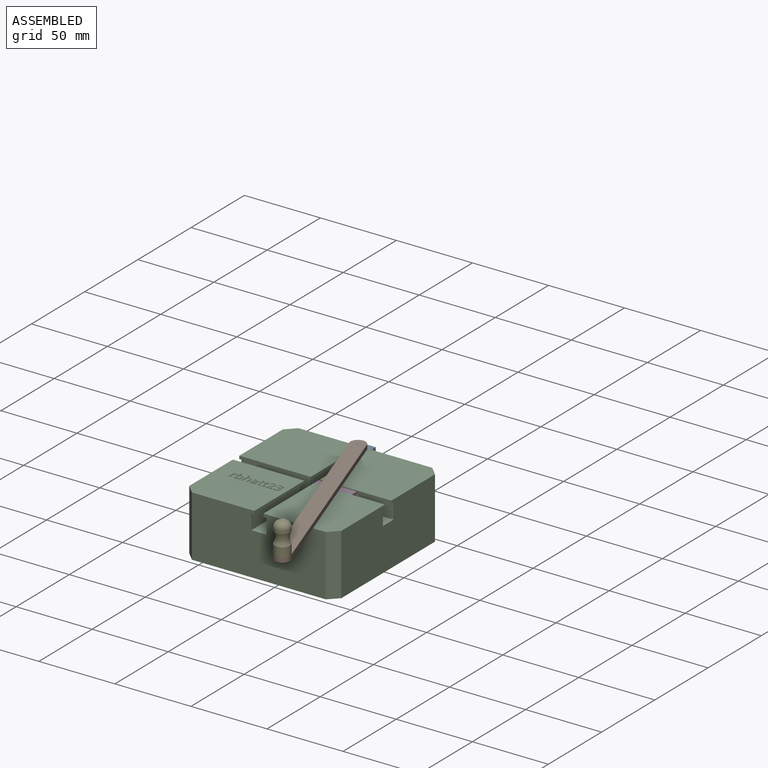
[diagram: assembled view]
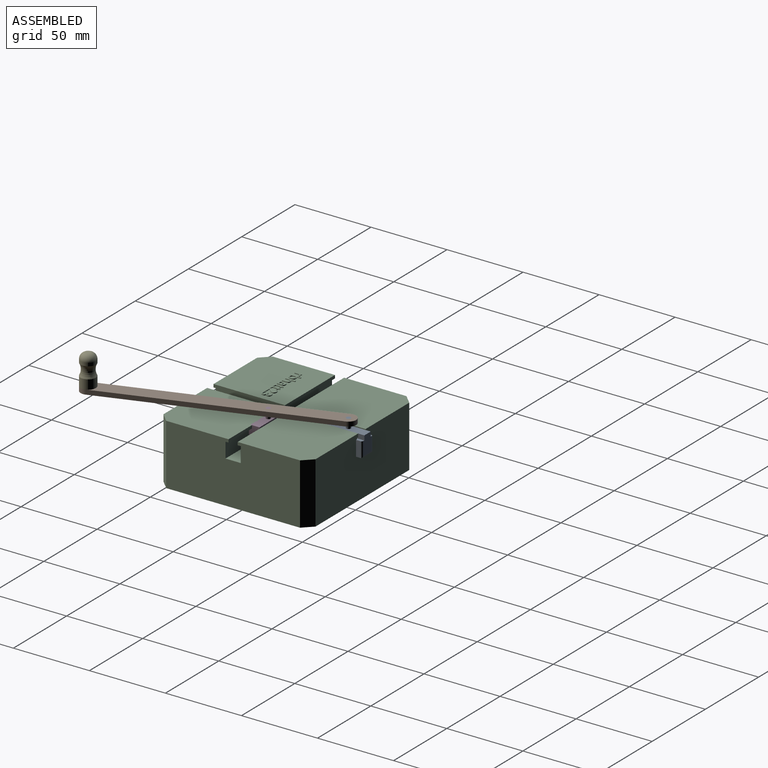
[diagram: assembled view, second angle]
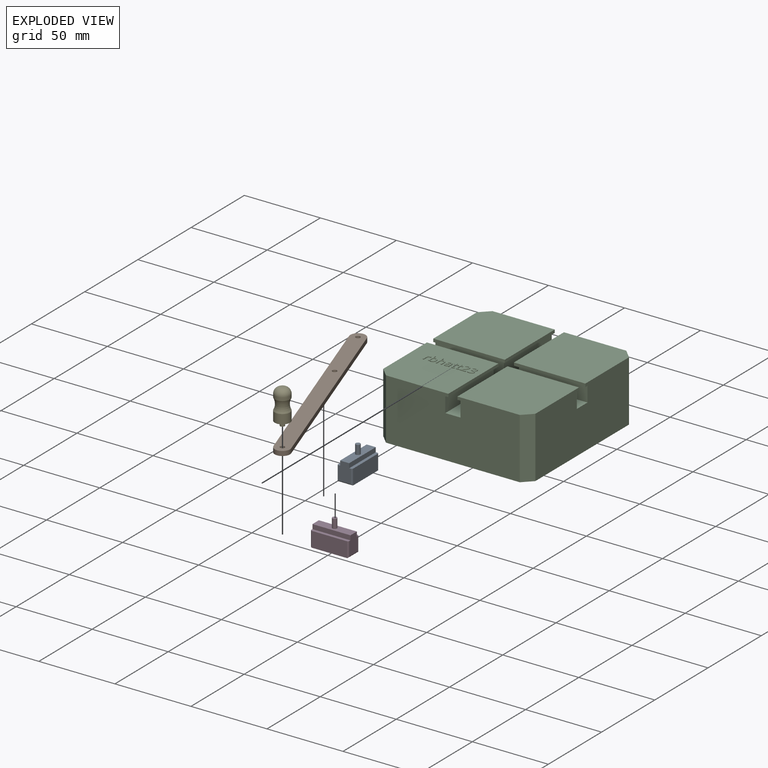
[diagram: exploded view]
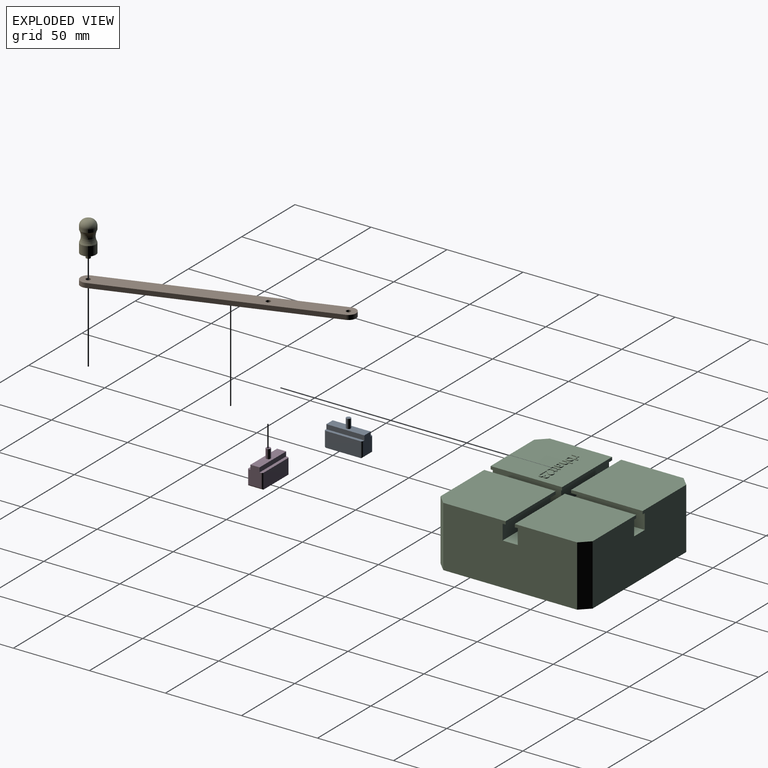
[diagram: exploded view, second angle]
ASSEMBLY  parts=5 mates=5
PART A: 18 faces, bbox 10x25x19 mm
  f0: plane 25x6mm, normal (0,0,1), area 142.9mm2, adj f1,f7,f8,f9,f16
  f1: plane 25x3mm, normal (-1,0,0), area 75mm2, adj f0,f2,f8,f9
  f2: plane 25x2mm, normal (0,0,1), area 49.6mm2, adj f1,f3,f8,f9,f10,f13
  f3: plane 23x10mm, normal (-1,0,0), area 230mm2, adj f2,f4,f10,f13
  f4: plane 23x10mm, normal (0,0,-1), area 230mm2, adj f3,f5,f11,f14
  f5: plane 23x10mm, normal (1,0,0), area 230mm2, adj f4,f6,f12,f15
  f6: plane 25x2mm, normal (0,0,1), area 49.6mm2, adj f5,f7,f8,f9,f12,f15
  f7: plane 25x3mm, normal (1,0,0), area 75mm2, adj f0,f6,f8,f9
  f8: plane 12x8mm, normal (0,-1,0), area 90mm2, adj f0,f1,f2,f6,f7,f13,f14,f15
  f9: plane 12x8mm, normal (0,1,0), area 90mm2, adj f0,f1,f2,f6,f7,f10,f11,f12
  f10: cylinder r=1mm len=10mm, axis (0,0,-1), area 15.1mm2, adj f2,f3,f9,f11
  f11: cylinder r=1mm len=10mm, axis (1,0,0), area 14.6mm2, adj f4,f9,f10,f12
  f12: cylinder r=1mm len=10mm, axis (0,0,1), area 15.1mm2, adj f5,f6,f9,f11
  f13: cylinder r=1mm len=10mm, axis (0,0,1), area 15.1mm2, adj f2,f3,f8,f14
  f14: cylinder r=1mm len=10mm, axis (-1,0,0), area 14.6mm2, adj f4,f8,f13,f15
  f15: cylinder r=1mm len=10mm, axis (0,0,-1), area 15.1mm2, adj f5,f6,f8,f14
  f16: cylinder r=1.5mm len=6mm, axis (0,0,-1), area 56.5mm2, adj f0,f17
  f17: plane 3x3mm, normal (0,0,1), area 7.1mm2, adj f16
PART B: 9 faces, bbox 10x156x3 mm
  f0: cylinder r=5mm len=10mm, axis (0,0,-1), area 47.1mm2, adj f1,f6,f7,f8
  f1: plane 146x3mm, normal (-1,0,0), area 438mm2, adj f0,f2,f7,f8
  f2: cylinder r=5mm len=10mm, axis (0,0,-1), area 47.1mm2, adj f1,f6,f7,f8
  f3: cylinder r=1.5mm len=3mm, axis (0,0,-1), area 28.3mm2, adj f7,f8
  f4: cylinder r=1.5mm len=3mm, axis (0,0,-1), area 28.3mm2, adj f7,f8
  f5: cylinder r=1.5mm len=3mm, axis (0,0,-1), area 28.3mm2, adj f7,f8
  f6: plane 146x3mm, normal (1,0,0), area 438mm2, adj f0,f2,f7,f8
  f7: plane 156x10mm, normal (0,0,1), area 1517.3mm2, adj f0,f1,f2,f3,f4,f5,f6
  f8: plane 156x10mm, normal (0,0,-1), area 1517.3mm2, adj f0,f1,f2,f3,f4,f5,f6
PART C: 211 faces, bbox 100x100x40.5 mm
  f0: plane 47x47mm, normal (0,0,1), area 2122.4mm2, adj f12,f13,f14,f19,f29,f34,f35,f36
  f1: plane 47x47mm, normal (0,0,1), area 2191mm2, adj f6,f10,f14,f15,f27
  f2: plane 47x47mm, normal (0,0,1), area 2191mm2, adj f5,f7,f10,f16,f30
  f3: plane 47x47mm, normal (0,0,-1), area 184mm2, adj f5,f7,f8,f10,f30,f33
  f4: plane 47x47mm, normal (0,0,-1), area 184mm2, adj f12,f14,f19,f24,f26,f29
  f5: plane 88x40mm, normal (0,1,0), area 3408mm2, adj f2,f3,f11,f16,f17,f18,f21,f23
  f6: plane 47x2mm, normal (0,1,0), area 94mm2, adj f1,f10,f25,f27
  f7: plane 47x2mm, normal (0,-1,0), area 94mm2, adj f2,f3,f10,f30
  f8: plane 45x10mm, normal (0,-1,0), area 450mm2, adj f3,f10,f23,f33
  f9: plane 45x10mm, normal (0,1,0), area 450mm2, adj f10,f23,f25,f28
  f10: plane 88x40mm, normal (1,0,0), area 3408mm2, adj f1,f2,f3,f6,f7,f8,f9,f15
  f11: plane 40x6mm, normal (-0.71,0.71,0), area 339.4mm2, adj f5,f12,f17,f18
  f12: plane 88x40mm, normal (-1,0,0), area 3408mm2, adj f0,f4,f11,f13,f17,f18,f19,f20
  f13: plane 40x6mm, normal (-0.71,-0.71,0), area 339.4mm2, adj f0,f12,f14,f18
  f14: plane 88x40mm, normal (0,-1,0), area 3408mm2, adj f0,f1,f4,f13,f15,f18,f23,f25
  f15: plane 40x6mm, normal (0.71,-0.71,0), area 339.4mm2, adj f1,f10,f14,f18
  f16: plane 40x6mm, normal (0.71,0.71,0), area 339.4mm2, adj f2,f5,f10,f18
  f17: plane 47x47mm, normal (0,0,1), area 2191mm2, adj f5,f11,f12,f20,f31
  f18: plane 100x100mm, normal (0,0,-1), area 9928mm2, adj f5,f10,f11,f12,f13,f14,f15,f16
  f19: plane 47x2mm, normal (0,1,0), area 94mm2, adj f0,f4,f12,f29
  f20: plane 47x2mm, normal (0,-1,0), area 94mm2, adj f12,f17,f21,f31
  f21: plane 47x47mm, normal (0,0,-1), area 184mm2, adj f5,f12,f20,f22,f31,f32
  f22: plane 45x10mm, normal (0,-1,0), area 450mm2, adj f12,f21,f23,f32
  f23: plane 100x100mm, normal (0,0,1), area 1900mm2, adj f5,f8,f9,f10,f12,f14,f22,f24
  f24: plane 45x10mm, normal (0,1,0), area 450mm2, adj f4,f12,f23,f26
  f25: plane 47x47mm, normal (0,0,-1), area 184mm2, adj f6,f9,f10,f14,f27,f28
  f26: plane 45x10mm, normal (1,0,0), area 450mm2, adj f4,f14,f23,f24
  f27: plane 47x2mm, normal (-1,0,0), area 94mm2, adj f1,f6,f14,f25
  f28: plane 45x10mm, normal (-1,0,0), area 450mm2, adj f9,f14,f23,f25
  f29: plane 47x2mm, normal (1,0,0), area 94mm2, adj f0,f4,f14,f19
  f30: plane 47x2mm, normal (-1,0,0), area 94mm2, adj f2,f3,f5,f7
  f31: plane 47x2mm, normal (1,0,0), area 94mm2, adj f5,f17,f20,f21
  f32: plane 45x10mm, normal (1,0,0), area 450mm2, adj f5,f21,f22,f23
  f33: plane 45x10mm, normal (-1,0,0), area 450mm2, adj f3,f5,f8,f23
  f34: extruded ~0.54x0.5mm, area 0.3mm2, adj f0,f35,f46,f47
  f35: extruded ~0.78x0.5mm, area 0.4mm2, adj f0,f34,f36,f47
  f36: extruded ~0.68x0.61mm, area 0.5mm2, adj f0,f35,f37,f47
  f37: plane 0.5x0.03mm, normal (0,1,0), area 0mm2, adj f0,f36,f38,f47
  f38: plane 0.84x0.5mm, normal (1,0.09,0), area 0.4mm2, adj f0,f37,f39,f47
  f39: plane 0.56x0.5mm, normal (0,1,0), area 0.3mm2, adj f0,f38,f40,f47
  f40: plane 4.52x0.5mm, normal (-1,0,0), area 2.3mm2, adj f0,f39,f41,f47
  f41: plane 0.68x0.5mm, normal (0,-1,0), area 0.3mm2, adj f0,f40,f42,f47
  f42: plane 2.42x0.5mm, normal (1,0,0), area 1.2mm2, adj f0,f41,f43,f47
  f43: extruded ~1.11x0.5mm, area 0.6mm2, adj f0,f42,f44,f47
  f44: extruded ~0.94x0.5mm, area 0.5mm2, adj f0,f43,f45,f47
  f45: extruded ~0.5x0.49mm, area 0.2mm2, adj f0,f44,f46,f47
  f46: plane 0.63x0.5mm, normal (0.99,-0.15,0), area 0.3mm2, adj f0,f34,f45,f47
  f47: plane 4.6x2.6mm, normal (0,0,1), area 4.3mm2, adj f34,f35,f36,f37,f38,f39,f40,f41
  f48: extruded ~1.01x0.5mm, area 0.6mm2, adj f49,f70,f71,f72
  f49: extruded ~0.96x0.5mm, area 0.5mm2, adj f48,f50,f71,f72
  f50: extruded ~1.31x0.5mm, area 0.7mm2, adj f49,f51,f71,f72
  f51: extruded ~1.32x0.5mm, area 0.7mm2, adj f50,f52,f71,f72
  f52: extruded ~0.94x0.5mm, area 0.5mm2, adj f51,f53,f71,f72
  f53: extruded ~1.02x0.5mm, area 0.6mm2, adj f52,f54,f71,f72
  f54: extruded ~1.36x0.5mm, area 0.7mm2, adj f53,f70,f71,f72
  f55: extruded ~1.38x0.61mm, area 0.8mm2, adj f0,f56,f69,f71
  f56: extruded ~1.42x0.68mm, area 0.8mm2, adj f0,f55,f57,f71
  f57: plane 0.5x0.03mm, normal (0,1,0), area 0mm2, adj f0,f56,f58,f71
  f58: extruded ~0.94x0.5mm, area 0.5mm2, adj f0,f57,f59,f71
  f59: plane 1.56x0.5mm, normal (1,0,0), area 0.8mm2, adj f0,f58,f60,f71
  f60: plane 0.68x0.5mm, normal (0,1,0), area 0.3mm2, adj f0,f59,f61,f71
  f61: plane 6.41x0.5mm, normal (-1,0,0), area 3.2mm2, adj f0,f60,f62,f71
  f62: plane 0.5x0.49mm, normal (0,-1,0), area 0.2mm2, adj f0,f61,f63,f71
  f63: plane 0.58x0.5mm, normal (0.97,-0.24,0), area 0.3mm2, adj f0,f62,f64,f71
  f64: plane 0.5x0.05mm, normal (0,-1,0), area 0mm2, adj f0,f63,f65,f71
  f65: extruded ~0.61x0.5mm, area 0.4mm2, adj f0,f64,f66,f71
  f66: extruded ~0.81x0.5mm, area 0.4mm2, adj f0,f65,f67,f71
  f67: extruded ~1.38x0.62mm, area 0.8mm2, adj f0,f66,f68,f71
  f68: extruded ~1.73x0.5mm, area 0.9mm2, adj f0,f67,f69,f71
  f69: extruded ~1.72x0.5mm, area 0.9mm2, adj f0,f55,f68,f71
  f70: extruded ~1.35x0.5mm, area 0.7mm2, adj f48,f54,f71,f72
  f71: plane 6.5x3.98mm, normal (0,0,1), area 9.9mm2, adj f48,f49,f50,f51,f52,f53,f54,f55
  f72: plane 3.53x2.58mm, normal (0,0,1), area 7.7mm2, adj f48,f49,f50,f51,f52,f53,f54,f70
  f73: plane 2.92x0.5mm, normal (-1,0,0), area 1.5mm2, adj f0,f74,f90,f91
  f74: plane 0.68x0.5mm, normal (0,-1,0), area 0.3mm2, adj f0,f73,f75,f91
  f75: plane 2.95x0.5mm, normal (1,0,0), area 1.5mm2, adj f0,f74,f76,f91
  f76: extruded ~1.25x0.5mm, area 0.7mm2, adj f0,f75,f77,f91
  f77: extruded ~1.24x0.5mm, area 0.7mm2, adj f0,f76,f78,f91
  f78: extruded ~0.85x0.5mm, area 0.4mm2, adj f0,f77,f79,f91
  f79: extruded ~0.58x0.51mm, area 0.4mm2, adj f0,f78,f80,f91
  f80: plane 0.5x0.04mm, normal (0,1,0), area 0mm2, adj f0,f79,f81,f91
  f81: extruded ~0.58x0.5mm, area 0.3mm2, adj f0,f80,f82,f91
  f82: plane 1.94x0.5mm, normal (1,0,0), area 1mm2, adj f0,f81,f83,f91
  f83: plane 0.68x0.5mm, normal (0,1,0), area 0.3mm2, adj f0,f82,f84,f91
  f84: plane 6.41x0.5mm, normal (-1,0,0), area 3.2mm2, adj f0,f83,f85,f91
  f85: plane 0.68x0.5mm, normal (0,-1,0), area 0.3mm2, adj f0,f84,f86,f91
  f86: plane 2.36x0.5mm, normal (1,0,0), area 1.2mm2, adj f0,f85,f87,f91
  f87: extruded ~1.27x0.5mm, area 0.7mm2, adj f0,f86,f88,f91
  f88: extruded ~1.04x0.5mm, area 0.6mm2, adj f0,f87,f89,f91
  f89: extruded ~0.79x0.5mm, area 0.4mm2, adj f0,f88,f90,f91
  f90: extruded ~0.82x0.5mm, area 0.4mm2, adj f0,f73,f89,f91
  f91: plane 6.41x3.78mm, normal (0,0,1), area 8.7mm2, adj f73,f74,f75,f76,f77,f78,f79,f80
  f92: extruded ~1x0.5mm, area 0.5mm2, adj f93,f118,f119,f120
  f93: extruded ~0.63x0.5mm, area 0.3mm2, adj f92,f94,f119,f120
  f94: extruded ~0.57x0.5mm, area 0.3mm2, adj f93,f95,f119,f120
  f95: extruded ~0.7x0.5mm, area 0.4mm2, adj f94,f96,f119,f120
  f96: extruded ~1.18x0.5mm, area 0.6mm2, adj f95,f97,f119,f120
  f97: plane 0.68x0.5mm, normal (0.04,-1,0), area 0.3mm2, adj f96,f98,f119,f120
  f98: plane 0.5x0.41mm, normal (-1,0,0), area 0.2mm2, adj f97,f118,f119,f120
  f99: plane 0.64x0.5mm, normal (-0.98,-0.21,0), area 0.3mm2, adj f0,f100,f117,f119
  f100: plane 0.51x0.5mm, normal (0,-1,0), area 0.3mm2, adj f0,f99,f101,f119
  f101: plane 3.08x0.5mm, normal (1,0,0), area 1.5mm2, adj f0,f100,f102,f119
  f102: extruded ~1.15x0.5mm, area 0.6mm2, adj f0,f101,f103,f119
  f103: extruded ~1.2x0.5mm, area 0.6mm2, adj f0,f102,f104,f119
  f104: extruded ~0.8x0.5mm, area 0.4mm2, adj f0,f103,f105,f119
  f105: extruded ~0.73x0.5mm, area 0.4mm2, adj f0,f104,f106,f119
  f106: plane 0.52x0.5mm, normal (-0.93,-0.37,0), area 0.3mm2, adj f0,f105,f107,f119
  f107: extruded ~1.28x0.5mm, area 0.7mm2, adj f0,f106,f108,f119
  f108: extruded ~0.73x0.5mm, area 0.4mm2, adj f0,f107,f109,f119
  f109: extruded ~0.78x0.5mm, area 0.4mm2, adj f0,f108,f110,f119
  f110: plane 0.5x0.28mm, normal (-1,0,0), area 0.1mm2, adj f0,f109,f111,f119
  f111: plane 0.77x0.5mm, normal (-0.03,1,0), area 0.4mm2, adj f0,f110,f112,f119
  f112: extruded ~2.19x1.43mm, area 1.5mm2, adj f0,f111,f113,f119
  f113: extruded ~0.99x0.5mm, area 0.5mm2, adj f0,f112,f114,f119
  f114: extruded ~1.05x0.5mm, area 0.6mm2, adj f0,f113,f115,f119
  f115: extruded ~0.84x0.5mm, area 0.4mm2, adj f0,f114,f116,f119
  f116: extruded ~0.67x0.58mm, area 0.4mm2, adj f0,f115,f117,f119
  f117: plane 0.5x0.03mm, normal (0,-1,0), area 0mm2, adj f0,f99,f116,f119
  f118: extruded ~0.98x0.5mm, area 0.5mm2, adj f92,f98,f119,f120
  f119: plane 4.67x3.62mm, normal (0,0,1), area 8mm2, adj f92,f93,f94,f95,f96,f97,f98,f99
  f120: plane 2.22x1.74mm, normal (0,0,1), area 3.1mm2, adj f92,f93,f94,f95,f96,f97,f98,f118
  f121: extruded ~0.5x0.35mm, area 0.2mm2, adj f0,f122,f139,f140
  f122: extruded ~0.53x0.5mm, area 0.3mm2, adj f0,f121,f123,f140
  f123: extruded ~0.63x0.5mm, area 0.3mm2, adj f0,f122,f124,f140
  f124: plane 2.66x0.5mm, normal (1,0,0), area 1.3mm2, adj f0,f123,f125,f140
  f125: plane 1.31x0.5mm, normal (0,-1,0), area 0.7mm2, adj f0,f124,f126,f140
  f126: plane 0.53x0.5mm, normal (1,0,0), area 0.3mm2, adj f0,f125,f127,f140
  f127: plane 1.31x0.5mm, normal (0,1,0), area 0.7mm2, adj f0,f126,f128,f140
  f128: plane 1.05x0.5mm, normal (1,0,0), area 0.5mm2, adj f0,f127,f129,f140
  f129: plane 0.5x0.4mm, normal (0,1,0), area 0.2mm2, adj f0,f128,f130,f140
  f130: plane 0.96x0.5mm, normal (-0.96,0.29,0), area 0.5mm2, adj f0,f129,f131,f140
  f131: plane 0.65x0.5mm, normal (-0.4,0.92,0), area 0.4mm2, adj f0,f130,f132,f140
  f132: plane 0.5x0.33mm, normal (-1,0,0), area 0.2mm2, adj f0,f131,f133,f140
  f133: plane 0.65x0.5mm, normal (0,-1,0), area 0.3mm2, adj f0,f132,f134,f140
  f134: plane 2.69x0.5mm, normal (-1,0,0), area 1.3mm2, adj f0,f133,f135,f140
  f135: extruded ~1.38x1.31mm, area 1.1mm2, adj f0,f134,f136,f140
  f136: extruded ~0.5x0.39mm, area 0.2mm2, adj f0,f135,f137,f140
  f137: extruded ~0.5x0.33mm, area 0.2mm2, adj f0,f136,f138,f140
  f138: plane 0.52x0.5mm, normal (1,0,0), area 0.3mm2, adj f0,f137,f139,f140
  f139: extruded ~0.5x0.27mm, area 0.1mm2, adj f0,f121,f138,f140
  f140: plane 5.65x2.67mm, normal (0,0,1), area 5.3mm2, adj f121,f122,f123,f124,f125,f126,f127,f128
  f141: extruded ~0.5x0.35mm, area 0.2mm2, adj f0,f142,f159,f160
  f142: extruded ~0.53x0.5mm, area 0.3mm2, adj f0,f141,f143,f160
  f143: extruded ~0.63x0.5mm, area 0.3mm2, adj f0,f142,f144,f160
  f144: plane 2.66x0.5mm, normal (1,0,0), area 1.3mm2, adj f0,f143,f145,f160
  f145: plane 1.31x0.5mm, normal (0,-1,0), area 0.7mm2, adj f0,f144,f146,f160
  f146: plane 0.53x0.5mm, normal (1,0,0), area 0.3mm2, adj f0,f145,f147,f160
  f147: plane 1.31x0.5mm, normal (0,1,0), area 0.7mm2, adj f0,f146,f148,f160
  f148: plane 1.05x0.5mm, normal (1,0,0), area 0.5mm2, adj f0,f147,f149,f160
  f149: plane 0.5x0.4mm, normal (0,1,0), area 0.2mm2, adj f0,f148,f150,f160
  f150: plane 0.96x0.5mm, normal (-0.96,0.29,0), area 0.5mm2, adj f0,f149,f151,f160
  f151: plane 0.65x0.5mm, normal (-0.4,0.92,0), area 0.4mm2, adj f0,f150,f152,f160
  f152: plane 0.5x0.33mm, normal (-1,0,0), area 0.2mm2, adj f0,f151,f153,f160
  f153: plane 0.65x0.5mm, normal (0,-1,0), area 0.3mm2, adj f0,f152,f154,f160
  f154: plane 2.69x0.5mm, normal (-1,0,0), area 1.3mm2, adj f0,f153,f155,f160
  f155: extruded ~1.38x1.31mm, area 1.1mm2, adj f0,f154,f156,f160
  f156: extruded ~0.5x0.39mm, area 0.2mm2, adj f0,f155,f157,f160
  f157: extruded ~0.5x0.33mm, area 0.2mm2, adj f0,f156,f158,f160
  f158: plane 0.52x0.5mm, normal (1,0,0), area 0.3mm2, adj f0,f157,f159,f160
  f159: extruded ~0.5x0.27mm, area 0.1mm2, adj f0,f141,f158,f160
  f160: plane 5.65x2.67mm, normal (0,0,1), area 5.3mm2, adj f141,f142,f143,f144,f145,f146,f147,f148
  f161: plane 3.96x0.5mm, normal (0,-1,0), area 2mm2, adj f0,f162,f180,f181
  f162: plane 0.63x0.5mm, normal (1,0,0), area 0.3mm2, adj f0,f161,f163,f181
  f163: plane 3.1x0.5mm, normal (0,1,0), area 1.5mm2, adj f0,f162,f164,f181
  f164: plane 0.5x0.03mm, normal (1,0,0), area 0mm2, adj f0,f163,f165,f181
  f165: plane 1.32x1.29mm, normal (0.7,-0.71,0), area 0.9mm2, adj f0,f164,f166,f181
  f166: extruded ~1.42x1.2mm, area 0.9mm2, adj f0,f165,f167,f181
  f167: extruded ~1.13x0.5mm, area 0.6mm2, adj f0,f166,f168,f181
  f168: extruded ~1.17x0.5mm, area 0.7mm2, adj f0,f167,f169,f181
  f169: extruded ~1.33x0.5mm, area 0.7mm2, adj f0,f168,f170,f181
  f170: extruded ~1.81x0.69mm, area 1mm2, adj f0,f169,f171,f181
  f171: plane 0.5x0.47mm, normal (-0.79,-0.61,0), area 0.3mm2, adj f0,f170,f172,f181
  f172: extruded ~0.75x0.5mm, area 0.4mm2, adj f0,f171,f173,f181
  f173: extruded ~0.71x0.5mm, area 0.4mm2, adj f0,f172,f174,f181
  f174: extruded ~0.81x0.5mm, area 0.4mm2, adj f0,f173,f175,f181
  f175: extruded ~0.77x0.5mm, area 0.4mm2, adj f0,f174,f176,f181
  f176: extruded ~0.64x0.5mm, area 0.3mm2, adj f0,f175,f177,f181
  f177: extruded ~0.61x0.5mm, area 0.4mm2, adj f0,f176,f178,f181
  f178: extruded ~1.05x0.96mm, area 0.7mm2, adj f0,f177,f179,f181
  f179: plane 1.59x1.59mm, normal (-0.71,0.71,0), area 1.1mm2, adj f0,f178,f180,f181
  f180: plane 0.59x0.5mm, normal (-1,0,0), area 0.3mm2, adj f0,f161,f179,f181
  f181: plane 6.11x3.96mm, normal (0,0,1), area 8mm2, adj f161,f162,f163,f164,f165,f166,f167,f168
  f182: extruded ~0.94x0.5mm, area 0.5mm2, adj f0,f183,f209,f210
  f183: extruded ~1.1x0.5mm, area 0.6mm2, adj f0,f182,f184,f210
  f184: extruded ~1.36x0.5mm, area 0.7mm2, adj f0,f183,f185,f210
  f185: extruded ~1.02x0.5mm, area 0.5mm2, adj f0,f184,f186,f210
  f186: extruded ~0.85x0.5mm, area 0.5mm2, adj f0,f185,f187,f210
  f187: plane 0.5x0.46mm, normal (-0.8,-0.6,0), area 0.3mm2, adj f0,f186,f188,f210
  f188: extruded ~0.8x0.5mm, area 0.4mm2, adj f0,f187,f189,f210
  f189: extruded ~0.75x0.5mm, area 0.4mm2, adj f0,f188,f190,f210
  f190: extruded ~0.82x0.5mm, area 0.4mm2, adj f0,f189,f191,f210
  f191: extruded ~0.69x0.5mm, area 0.4mm2, adj f0,f190,f192,f210
  f192: extruded ~0.86x0.5mm, area 0.5mm2, adj f0,f191,f193,f210
  f193: extruded ~1.12x0.5mm, area 0.6mm2, adj f0,f192,f194,f210
  f194: plane 0.6x0.5mm, normal (0,1,0), area 0.3mm2, adj f0,f193,f195,f210
  f195: plane 0.59x0.5mm, normal (-1,0,0), area 0.3mm2, adj f0,f194,f196,f210
  f196: plane 0.59x0.5mm, normal (0,-1,0), area 0.3mm2, adj f0,f195,f197,f210
  f197: extruded ~1.72x1.1mm, area 1.2mm2, adj f0,f196,f198,f210
  f198: extruded ~1.56x1.22mm, area 1.1mm2, adj f0,f197,f199,f210
  f199: extruded ~0.84x0.5mm, area 0.4mm2, adj f0,f198,f200,f210
  f200: extruded ~0.83x0.5mm, area 0.4mm2, adj f0,f199,f201,f210
  f201: plane 0.65x0.5mm, normal (-1,0,0), area 0.3mm2, adj f0,f200,f202,f210
  f202: extruded ~0.77x0.5mm, area 0.4mm2, adj f0,f201,f203,f210
  f203: extruded ~0.88x0.5mm, area 0.4mm2, adj f0,f202,f204,f210
  f204: extruded ~1.7x0.5mm, area 0.9mm2, adj f0,f203,f205,f210
  f205: extruded ~1.33x0.6mm, area 0.8mm2, adj f0,f204,f206,f210
  f206: extruded ~0.97x0.5mm, area 0.5mm2, adj f0,f205,f207,f210
  f207: extruded ~1.08x0.5mm, area 0.6mm2, adj f0,f206,f208,f210
  f208: plane 0.5x0.03mm, normal (1,0,0), area 0mm2, adj f0,f207,f209,f210
  f209: extruded ~0.92x0.5mm, area 0.5mm2, adj f0,f182,f208,f210
  f210: plane 6.19x3.94mm, normal (0,0,1), area 8.4mm2, adj f182,f183,f184,f185,f186,f187,f188,f189
PART D: same geometry as A
PART E: 8 faces, bbox 13.7x13.7x23 mm
  f0: plane 2x2mm, normal (0,0,-1), area 3.1mm2, adj f1
  f1: torus R=1mm, axis (0,0,-1), area 140mm2, adj f0,f2
  f2: cylinder r=5mm len=10mm, axis (0,0,-1), area 66.8mm2, adj f1,f3
  f3: torus R=12mm, axis (0,0,-1), area 220.3mm2, adj f2,f4
  f4: cylinder r=5mm len=10mm, axis (0,0,-1), area 192.5mm2, adj f3,f5
  f5: plane 10x10mm, normal (0,0,1), area 71.5mm2, adj f4,f6
  f6: cylinder r=1.5mm len=3mm, axis (0,0,-1), area 28.3mm2, adj f5,f7
  f7: plane 3x3mm, normal (0,0,1), area 7.1mm2, adj f6
PLACE A t=(-58.04,52.23,50.6)mm
PLACE B rot(axis=(0,0,-1),161.2deg) t=(5.89,61.51,53.6)mm
PLACE C t=(-62,-28.73,10.6)mm fixed
PLACE D rot(axis=(0,0,-1),90deg) t=(-31.02,-2.87,50.6)mm
PLACE E rot(axis=(0.49,-0.87,0),180deg) t=(44.39,-131.76,115.75)mm
MATE revolute B.f2 <-> A.f16  axis (0,0,1) through (-58.04,39.73,56.6)mm
MATE revolute E.f1 <-> B.f0  axis (0,0,-1) through (-10.95,-98.47,56.6)mm
MATE slider A.f8 <-> C.f14  axis (0,-1,0) through (-54.04,27.23,38.6)mm
MATE revolute B.f5 <-> D.f16  axis (0,0,1) through (-43.52,-2.87,56.6)mm
MATE slider D.f8 <-> C.f12  axis (-1,0,0) through (-56.02,-6.87,38.6)mm
